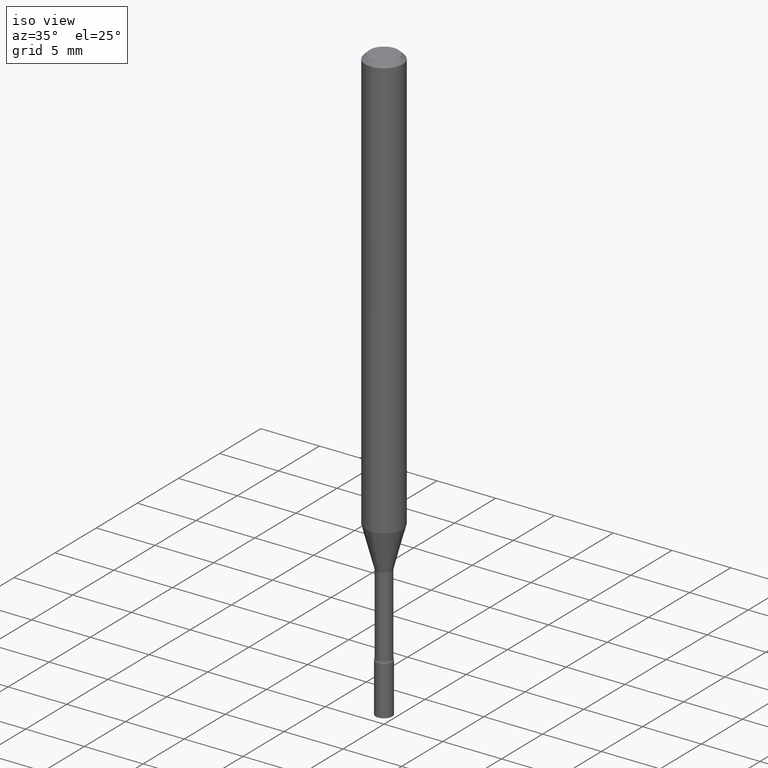
[diagram: clean part render]
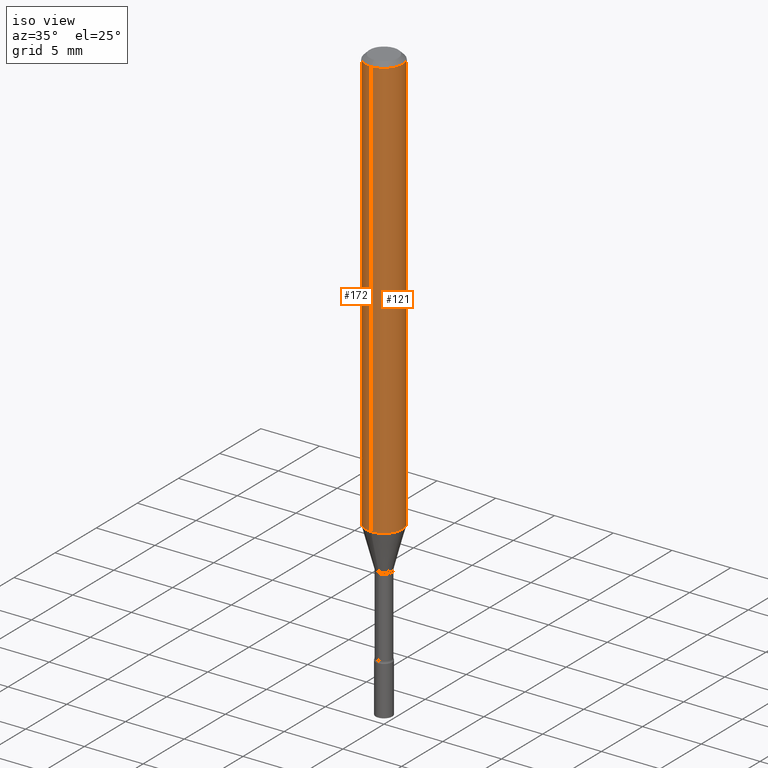
[diagram: same view with one multi-face feature highlighted, each face labeled with its STEP entity id]
A machine part, iso view. The highlighted faces form ONE feature: a constant-radius fillet chain: 2 tangent blend faces with common blend radius 1.5875 mm. The faces share edges in the B-rep.
Their STEP definitions:
[1] entity #121 (Cylinder):
#25 = VERTEX_POINT ( 'NONE', #444 ) ;
#37 = VECTOR ( 'NONE', #210, 39.37007874015748143 ) ;
#79 = CARTESIAN_POINT ( 'NONE',  ( 0.000000000000000000, 0.000000000000000000, 0.000000000000000000 ) ) ;
#90 = EDGE_CURVE ( 'NONE', #25, #511, #159, .T. ) ;
#94 = CIRCLE ( 'NONE', #164, 0.06250000000000000000 ) ;
#102 = VERTEX_POINT ( 'NONE', #234 ) ;
#107 = EDGE_CURVE ( 'NONE', #25, #102, #145, .T. ) ;
#117 = CYLINDRICAL_SURFACE ( 'NONE', #492, 0.06250000000000000000 ) ;
#119 = CARTESIAN_POINT ( 'NONE',  ( -4.364351673553916201E-16, -0.06250000000000000000, 2.182106599533711511E-16 ) ) ;
#121 = ADVANCED_FACE ( 'NONE', ( #197 ), #117, .T. ) ;
#134 = CARTESIAN_POINT ( 'NONE',  ( 4.440892098500976219E-16, 0.06249999999999995143, -0.01500000000000024751 ) ) ;
#144 = DIRECTION ( 'NONE',  ( -6.982962677686265922E-15, -1.000000000000000000, 3.483106191921935554E-15 ) ) ;
#145 = CIRCLE ( 'NONE', #412, 0.06250000000000000000 ) ;
#157 = DIRECTION ( 'NONE',  ( -2.445546163158825078E-29, 3.491370559253938417E-15, 1.000000000000000000 ) ) ;
#159 = LINE ( 'NONE', #119, #206 ) ;
#164 = AXIS2_PLACEMENT_3D ( 'NONE', #497, #509, #144 ) ;
#185 = CARTESIAN_POINT ( 'NONE',  ( -4.364351673553912750E-16, -0.06250000000000005551, -0.01499999999999981209 ) ) ;
#192 = CARTESIAN_POINT ( 'NONE',  ( 3.480551036687311738E-29, -4.968989587084583465E-15, -1.423220337902600718 ) ) ;
#195 = EDGE_CURVE ( 'NONE', #102, #507, #298, .T. ) ;
#197 = FACE_OUTER_BOUND ( 'NONE', #461, .T. ) ;
#206 = VECTOR ( 'NONE', #157, 39.37007874015748143 ) ;
#210 = DIRECTION ( 'NONE',  ( -2.445546163158825078E-29, 3.491370559253938417E-15, 1.000000000000000000 ) ) ;
#234 = CARTESIAN_POINT ( 'NONE',  ( 4.440892098500972274E-16, 0.06249999999999501094, -1.423220337902601162 ) ) ;
#256 = ORIENTED_EDGE ( 'NONE', *, *, #90, .F. ) ;
#267 = DIRECTION ( 'NONE',  ( -6.982962677686265922E-15, -1.000000000000000000, 3.491370559253938417E-15 ) ) ;
#298 = LINE ( 'NONE', #466, #37 ) ;
#313 = ORIENTED_EDGE ( 'NONE', *, *, #107, .T. ) ;
#350 = DIRECTION ( 'NONE',  ( -6.982962677686265922E-15, -1.000000000000000000, 4.370956789862821150E-15 ) ) ;
#353 = DIRECTION ( 'NONE',  ( -2.445546163158824797E-29, 3.491370559253938417E-15, 1.000000000000000000 ) ) ;
#412 = AXIS2_PLACEMENT_3D ( 'NONE', #192, #481, #350 ) ;
#426 = ORIENTED_EDGE ( 'NONE', *, *, #506, .F. ) ;
#444 = CARTESIAN_POINT ( 'NONE',  ( -4.364351673553569595E-16, -0.06250000000000498213, -1.423220337902600496 ) ) ;
#461 = EDGE_LOOP ( 'NONE', ( #313, #508, #426, #256 ) ) ;
#466 = CARTESIAN_POINT ( 'NONE',  ( 4.440892098500625669E-16, 0.06250000000000000000, -2.182106599533711511E-16 ) ) ;
#481 = DIRECTION ( 'NONE',  ( -2.445546163158824797E-29, 3.491370559253938417E-15, 1.000000000000000000 ) ) ;
#492 = AXIS2_PLACEMENT_3D ( 'NONE', #79, #353, #267 ) ;
#497 = CARTESIAN_POINT ( 'NONE',  ( 3.668319244738244448E-31, -5.237055838880918670E-17, -0.01500000000000003067 ) ) ;
#506 = EDGE_CURVE ( 'NONE', #511, #507, #94, .T. ) ;
#507 = VERTEX_POINT ( 'NONE', #134 ) ;
#508 = ORIENTED_EDGE ( 'NONE', *, *, #195, .T. ) ;
#509 = DIRECTION ( 'NONE',  ( -2.445546163158824797E-29, 3.491370559253938417E-15, 1.000000000000000000 ) ) ;
#511 = VERTEX_POINT ( 'NONE', #185 ) ;
[2] entity #172 (Cylinder):
#17 = DIRECTION ( 'NONE',  ( -6.982962677686265922E-15, -1.000000000000000000, 3.483106191921935554E-15 ) ) ;
#25 = VERTEX_POINT ( 'NONE', #444 ) ;
#37 = VECTOR ( 'NONE', #210, 39.37007874015748143 ) ;
#45 = DIRECTION ( 'NONE',  ( -2.445546163158824797E-29, 3.491370559253938417E-15, 1.000000000000000000 ) ) ;
#56 = ORIENTED_EDGE ( 'NONE', *, *, #90, .T. ) ;
#80 = AXIS2_PLACEMENT_3D ( 'NONE', #518, #236, #122 ) ;
#82 = EDGE_CURVE ( 'NONE', #102, #25, #357, .T. ) ;
#90 = EDGE_CURVE ( 'NONE', #25, #511, #159, .T. ) ;
#101 = ORIENTED_EDGE ( 'NONE', *, *, #82, .T. ) ;
#102 = VERTEX_POINT ( 'NONE', #234 ) ;
#103 = CYLINDRICAL_SURFACE ( 'NONE', #193, 0.06250000000000000000 ) ;
#119 = CARTESIAN_POINT ( 'NONE',  ( -4.364351673553916201E-16, -0.06250000000000000000, 2.182106599533711511E-16 ) ) ;
#122 = DIRECTION ( 'NONE',  ( -6.982962677686265922E-15, -1.000000000000000000, 4.370956789862821150E-15 ) ) ;
#134 = CARTESIAN_POINT ( 'NONE',  ( 4.440892098500976219E-16, 0.06249999999999995143, -0.01500000000000024751 ) ) ;
#153 = FACE_OUTER_BOUND ( 'NONE', #411, .T. ) ;
#157 = DIRECTION ( 'NONE',  ( -2.445546163158825078E-29, 3.491370559253938417E-15, 1.000000000000000000 ) ) ;
#159 = LINE ( 'NONE', #119, #206 ) ;
#172 = ADVANCED_FACE ( 'NONE', ( #153 ), #103, .T. ) ;
#184 = DIRECTION ( 'NONE',  ( -2.445546163158824797E-29, 3.491370559253938417E-15, 1.000000000000000000 ) ) ;
#185 = CARTESIAN_POINT ( 'NONE',  ( -4.364351673553912750E-16, -0.06250000000000005551, -0.01499999999999981209 ) ) ;
#193 = AXIS2_PLACEMENT_3D ( 'NONE', #221, #184, #339 ) ;
#195 = EDGE_CURVE ( 'NONE', #102, #507, #298, .T. ) ;
#206 = VECTOR ( 'NONE', #157, 39.37007874015748143 ) ;
#210 = DIRECTION ( 'NONE',  ( -2.445546163158825078E-29, 3.491370559253938417E-15, 1.000000000000000000 ) ) ;
#217 = ORIENTED_EDGE ( 'NONE', *, *, #341, .F. ) ;
#221 = CARTESIAN_POINT ( 'NONE',  ( 0.000000000000000000, 0.000000000000000000, 0.000000000000000000 ) ) ;
#234 = CARTESIAN_POINT ( 'NONE',  ( 4.440892098500972274E-16, 0.06249999999999501094, -1.423220337902601162 ) ) ;
#236 = DIRECTION ( 'NONE',  ( -2.445546163158824797E-29, 3.491370559253938417E-15, 1.000000000000000000 ) ) ;
#279 = CARTESIAN_POINT ( 'NONE',  ( 3.668319244738244448E-31, -5.237055838880918670E-17, -0.01500000000000003067 ) ) ;
#298 = LINE ( 'NONE', #466, #37 ) ;
#339 = DIRECTION ( 'NONE',  ( -6.982962677686265922E-15, -1.000000000000000000, 3.491370559253938417E-15 ) ) ;
#341 = EDGE_CURVE ( 'NONE', #507, #511, #485, .T. ) ;
#357 = CIRCLE ( 'NONE', #80, 0.06250000000000000000 ) ;
#358 = AXIS2_PLACEMENT_3D ( 'NONE', #279, #45, #17 ) ;
#411 = EDGE_LOOP ( 'NONE', ( #422, #101, #56, #217 ) ) ;
#422 = ORIENTED_EDGE ( 'NONE', *, *, #195, .F. ) ;
#444 = CARTESIAN_POINT ( 'NONE',  ( -4.364351673553569595E-16, -0.06250000000000498213, -1.423220337902600496 ) ) ;
#466 = CARTESIAN_POINT ( 'NONE',  ( 4.440892098500625669E-16, 0.06250000000000000000, -2.182106599533711511E-16 ) ) ;
#485 = CIRCLE ( 'NONE', #358, 0.06250000000000000000 ) ;
#507 = VERTEX_POINT ( 'NONE', #134 ) ;
#511 = VERTEX_POINT ( 'NONE', #185 ) ;
#518 = CARTESIAN_POINT ( 'NONE',  ( 3.480551036687311738E-29, -4.968989587084583465E-15, -1.423220337902600718 ) ) ;